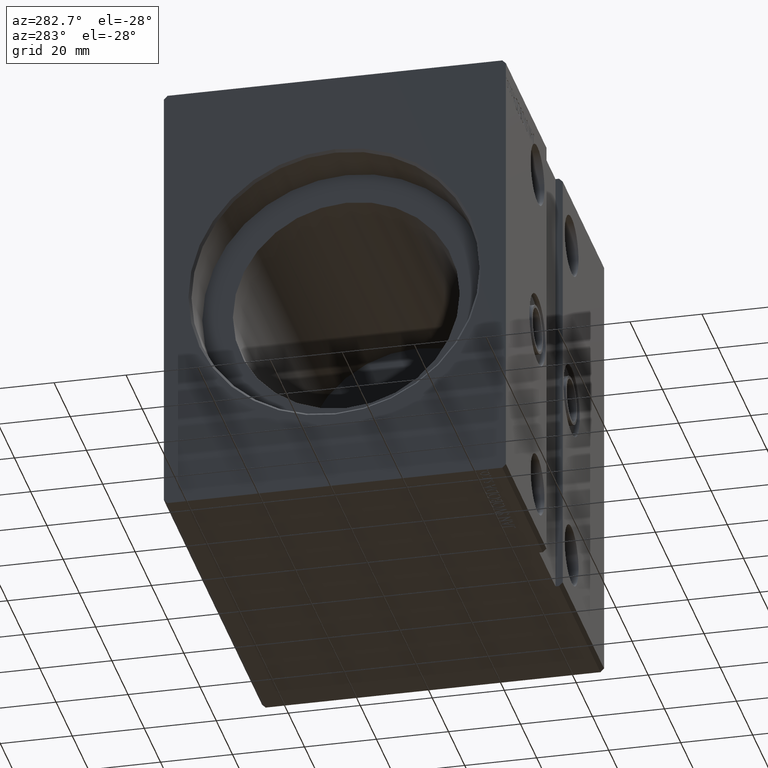
[diagram: clean part render]
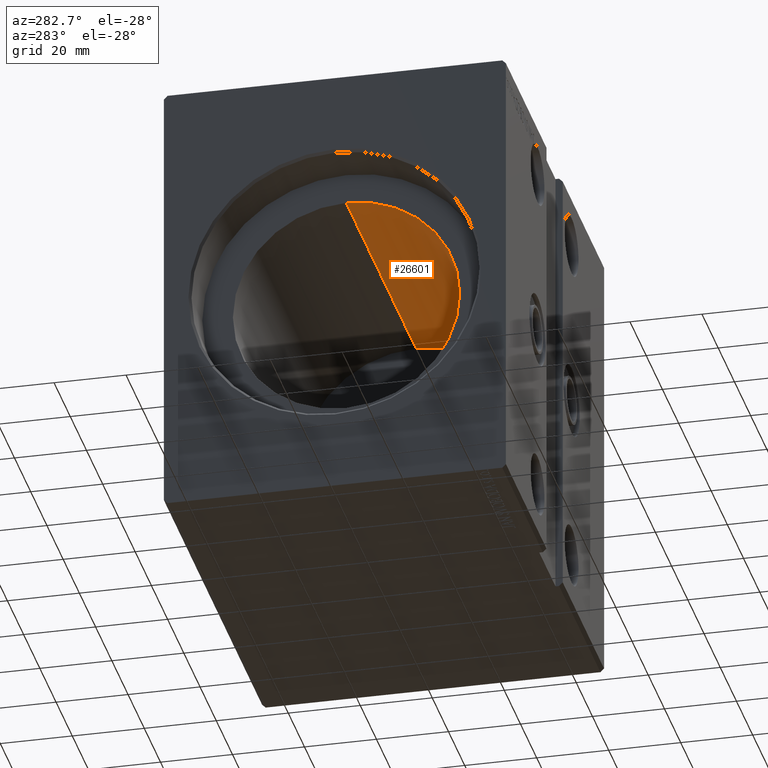
[diagram: same view with one face highlighted and labeled with its STEP entity id]
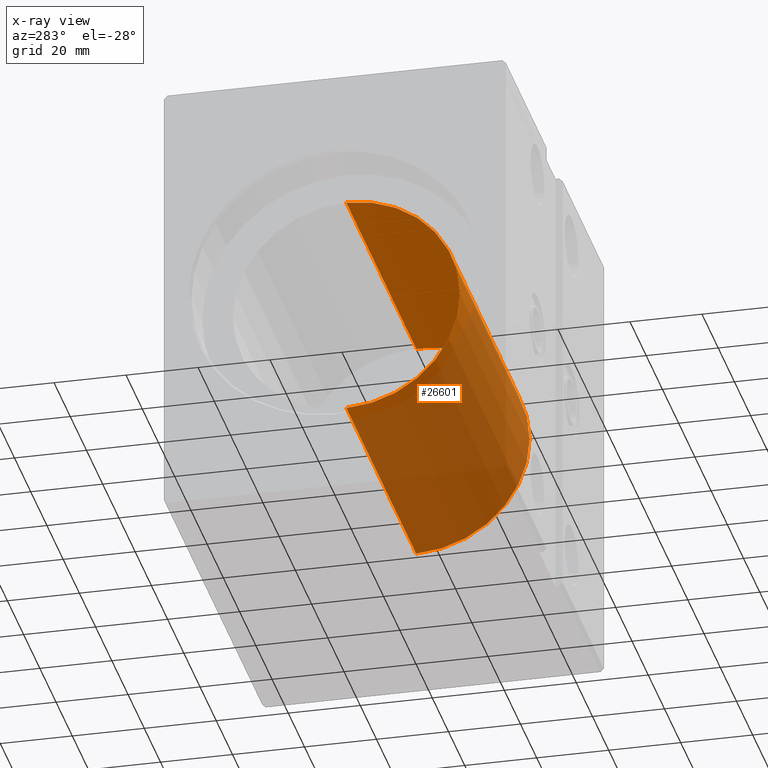
[diagram: x-ray of the same camera — body ghosted, the highlighted face saturated]
A machine part, auxiliary view. The second image highlights one B-rep face of the part: STEP entity #26601.
The next image is the same camera in x-ray: the body ghosted, the highlighted face saturated — about 68% of this face is hidden behind the body in this view.
In plain terms, the highlighted cylindrical surface (partial cylindrical patch) has radius 31.5 mm, axis along (-1, -0, -0).
Its self-contained STEP definition (entity closure, byte-faithful):
#453 = DIRECTION ( 'NONE',  ( -1.000000000000000000, -0.000000000000000000, -0.000000000000000000 ) ) ;
#1084 = EDGE_LOOP ( 'NONE', ( #19286, #18659, #40327, #26705 ) ) ;
#1888 = DIRECTION ( 'NONE',  ( 0.000000000000000000, 0.000000000000000000, 1.000000000000000000 ) ) ;
#2862 = CARTESIAN_POINT ( 'NONE',  ( 13.99999999999999822, 0.000000000000000000, 0.000000000000000000 ) ) ;
#3500 = DIRECTION ( 'NONE',  ( -1.000000000000000000, 0.000000000000000000, 0.000000000000000000 ) ) ;
#4076 = CARTESIAN_POINT ( 'NONE',  ( 100.2000000000000028, 0.000000000000000000, 0.000000000000000000 ) ) ;
#4280 = DIRECTION ( 'NONE',  ( 0.000000000000000000, 0.000000000000000000, 1.000000000000000000 ) ) ;
#5368 = VERTEX_POINT ( 'NONE', #7342 ) ;
#5570 = CARTESIAN_POINT ( 'NONE',  ( 13.99999999999999822, 3.857637417314162689E-15, -31.50000000000000000 ) ) ;
#6862 = CYLINDRICAL_SURFACE ( 'NONE', #26296, 31.50000000000000000 ) ;
#7342 = CARTESIAN_POINT ( 'NONE',  ( 100.2000000000000028, 0.000000000000000000, 31.50000000000000000 ) ) ;
#8319 = VERTEX_POINT ( 'NONE', #5570 ) ;
#12217 = VECTOR ( 'NONE', #453, 1000.000000000000000 ) ;
#12477 = LINE ( 'NONE', #38399, #39181 ) ;
#14638 = CIRCLE ( 'NONE', #25479, 31.50000000000000000 ) ;
#14861 = CARTESIAN_POINT ( 'NONE',  ( 100.2000000000000028, 0.000000000000000000, 0.000000000000000000 ) ) ;
#16224 = EDGE_CURVE ( 'NONE', #17636, #5368, #14638, .T. ) ;
#17636 = VERTEX_POINT ( 'NONE', #22321 ) ;
#18659 = ORIENTED_EDGE ( 'NONE', *, *, #25091, .T. ) ;
#19286 = ORIENTED_EDGE ( 'NONE', *, *, #16224, .F. ) ;
#21420 = DIRECTION ( 'NONE',  ( -1.000000000000000000, 0.000000000000000000, 0.000000000000000000 ) ) ;
#22235 = DIRECTION ( 'NONE',  ( -1.000000000000000000, -0.000000000000000000, -0.000000000000000000 ) ) ;
#22321 = CARTESIAN_POINT ( 'NONE',  ( 100.2000000000000028, 3.857637417314162689E-15, -31.50000000000000000 ) ) ;
#25091 = EDGE_CURVE ( 'NONE', #17636, #8319, #12477, .T. ) ;
#25479 = AXIS2_PLACEMENT_3D ( 'NONE', #14861, #21420, #1888 ) ;
#25580 = DIRECTION ( 'NONE',  ( 0.000000000000000000, 0.000000000000000000, 1.000000000000000000 ) ) ;
#26296 = AXIS2_PLACEMENT_3D ( 'NONE', #4076, #39564, #4280 ) ;
#26601 = ADVANCED_FACE ( 'NONE', ( #29768 ), #6862, .F. ) ;
#26705 = ORIENTED_EDGE ( 'NONE', *, *, #34011, .F. ) ;
#27349 = CARTESIAN_POINT ( 'NONE',  ( 13.99999999999999822, 0.000000000000000000, 31.50000000000000000 ) ) ;
#29752 = AXIS2_PLACEMENT_3D ( 'NONE', #2862, #3500, #25580 ) ;
#29768 = FACE_OUTER_BOUND ( 'NONE', #1084, .T. ) ;
#30063 = EDGE_CURVE ( 'NONE', #8319, #34338, #33802, .T. ) ;
#32524 = LINE ( 'NONE', #36755, #12217 ) ;
#33802 = CIRCLE ( 'NONE', #29752, 31.50000000000000000 ) ;
#34011 = EDGE_CURVE ( 'NONE', #5368, #34338, #32524, .T. ) ;
#34338 = VERTEX_POINT ( 'NONE', #27349 ) ;
#36755 = CARTESIAN_POINT ( 'NONE',  ( 100.2000000000000028, 0.000000000000000000, 31.50000000000000000 ) ) ;
#38399 = CARTESIAN_POINT ( 'NONE',  ( 100.2000000000000028, 3.857637417314162689E-15, -31.50000000000000000 ) ) ;
#39181 = VECTOR ( 'NONE', #22235, 1000.000000000000000 ) ;
#39564 = DIRECTION ( 'NONE',  ( -1.000000000000000000, -0.000000000000000000, -0.000000000000000000 ) ) ;
#40327 = ORIENTED_EDGE ( 'NONE', *, *, #30063, .T. ) ;